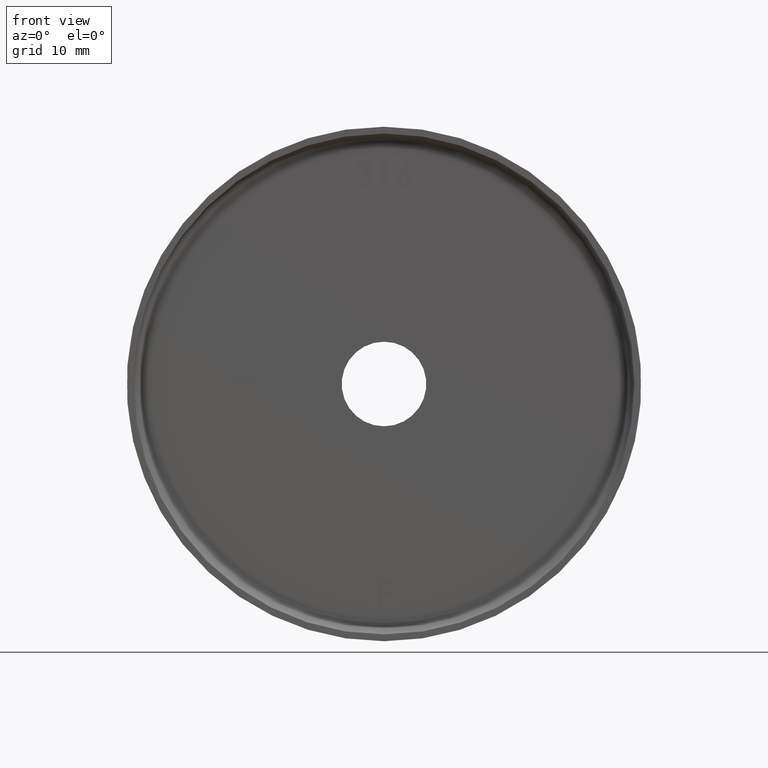
[diagram: clean part render]
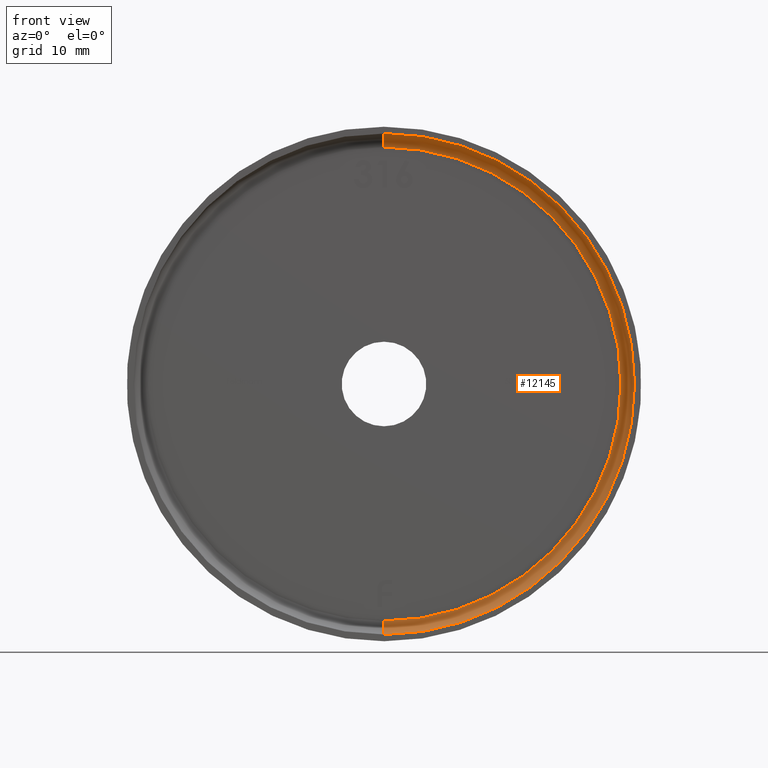
[diagram: same view with one face highlighted and labeled with its STEP entity id]
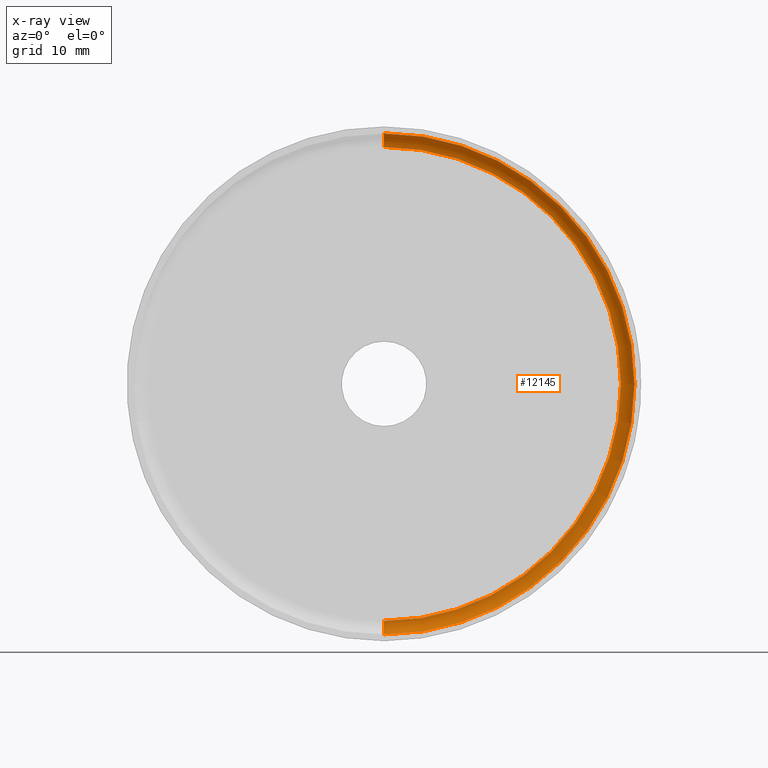
[diagram: x-ray of the same camera — body ghosted, the highlighted face saturated]
A machine part, front view. The second image highlights one B-rep face of the part: STEP entity #12145.
The next image is the same camera in x-ray: the body ghosted, the highlighted face saturated — about 0% of this face is hidden behind the body in this view.
In plain terms, the highlighted toroidal blend (fillet) surface has major radius 35 mm and minor (blend) radius 2 mm.
Its self-contained STEP definition (entity closure, byte-faithful):
#134 = DIRECTION ( 'NONE',  ( 0.000000000000000000, 0.000000000000000000, 1.000000000000000000 ) ) ;
#154 = EDGE_CURVE ( 'NONE', #14000, #12347, #12816, .T. ) ;
#434 = CARTESIAN_POINT ( 'NONE',  ( 0.000000000000000000, 11.00000000000000178, 0.000000000000000000 ) ) ;
#648 = AXIS2_PLACEMENT_3D ( 'NONE', #5395, #3216, #2152 ) ;
#1091 = DIRECTION ( 'NONE',  ( -1.000000000000000000, 0.000000000000000000, 0.000000000000000000 ) ) ;
#1119 = DIRECTION ( 'NONE',  ( 0.000000000000000000, 0.000000000000000000, -1.000000000000000000 ) ) ;
#1227 = EDGE_CURVE ( 'NONE', #12177, #14000, #10354, .T. ) ;
#1272 = CARTESIAN_POINT ( 'NONE',  ( 4.408728476930472433E-15, 11.00000000000000178, 35.00000000000000000 ) ) ;
#1531 = DIRECTION ( 'NONE',  ( -0.000000000000000000, -1.000000000000000000, -0.000000000000000000 ) ) ;
#2152 = DIRECTION ( 'NONE',  ( -1.224646799147353454E-16, 0.000000000000000000, -1.000000000000000000 ) ) ;
#2481 = TOROIDAL_SURFACE ( 'NONE', #11917, 35.00000000000000000, 2.000000000000000000 ) ;
#2522 = CARTESIAN_POINT ( 'NONE',  ( 0.000000000000000000, 9.000000000000001776, 0.000000000000000000 ) ) ;
#2990 = EDGE_CURVE ( 'NONE', #3836, #12347, #11468, .T. ) ;
#3030 = CARTESIAN_POINT ( 'NONE',  ( 4.531193156845207581E-15, 9.000000000000001776, 37.00000000000000711 ) ) ;
#3216 = DIRECTION ( 'NONE',  ( 1.000000000000000000, 0.000000000000000000, -1.224646799147353207E-16 ) ) ;
#3506 = EDGE_CURVE ( 'NONE', #12177, #3836, #10930, .T. ) ;
#3722 = ORIENTED_EDGE ( 'NONE', *, *, #2990, .T. ) ;
#3836 = VERTEX_POINT ( 'NONE', #10152 ) ;
#4515 = CARTESIAN_POINT ( 'NONE',  ( 0.000000000000000000, 9.000000000000001776, 0.000000000000000000 ) ) ;
#5237 = FACE_OUTER_BOUND ( 'NONE', #10174, .T. ) ;
#5395 = CARTESIAN_POINT ( 'NONE',  ( 4.286263797015736496E-15, 9.000000000000001776, 35.00000000000000000 ) ) ;
#5703 = DIRECTION ( 'NONE',  ( 0.000000000000000000, 0.000000000000000000, -1.000000000000000000 ) ) ;
#5805 = DIRECTION ( 'NONE',  ( -0.000000000000000000, -1.000000000000000000, -0.000000000000000000 ) ) ;
#6159 = ORIENTED_EDGE ( 'NONE', *, *, #3506, .T. ) ;
#6394 = AXIS2_PLACEMENT_3D ( 'NONE', #6753, #1091, #134 ) ;
#6753 = CARTESIAN_POINT ( 'NONE',  ( 0.000000000000000000, 9.000000000000001776, -35.00000000000000000 ) ) ;
#6779 = DIRECTION ( 'NONE',  ( -0.000000000000000000, -1.000000000000000000, -0.000000000000000000 ) ) ;
#8184 = AXIS2_PLACEMENT_3D ( 'NONE', #434, #1531, #9307 ) ;
#9307 = DIRECTION ( 'NONE',  ( 0.000000000000000000, 0.000000000000000000, -1.000000000000000000 ) ) ;
#10152 = CARTESIAN_POINT ( 'NONE',  ( 0.000000000000000000, 9.000000000000001776, -37.00000000000000711 ) ) ;
#10174 = EDGE_LOOP ( 'NONE', ( #13131, #10333, #6159, #3722 ) ) ;
#10333 = ORIENTED_EDGE ( 'NONE', *, *, #1227, .F. ) ;
#10354 = CIRCLE ( 'NONE', #8184, 35.00000000000000000 ) ;
#10930 = CIRCLE ( 'NONE', #6394, 2.000000000000001776 ) ;
#11468 = CIRCLE ( 'NONE', #14322, 37.00000000000000711 ) ;
#11917 = AXIS2_PLACEMENT_3D ( 'NONE', #2522, #5805, #5703 ) ;
#12145 = ADVANCED_FACE ( 'NONE', ( #5237 ), #2481, .F. ) ;
#12177 = VERTEX_POINT ( 'NONE', #12458 ) ;
#12347 = VERTEX_POINT ( 'NONE', #3030 ) ;
#12458 = CARTESIAN_POINT ( 'NONE',  ( 0.000000000000000000, 11.00000000000000178, -35.00000000000000000 ) ) ;
#12816 = CIRCLE ( 'NONE', #648, 2.000000000000001776 ) ;
#13131 = ORIENTED_EDGE ( 'NONE', *, *, #154, .F. ) ;
#14000 = VERTEX_POINT ( 'NONE', #1272 ) ;
#14322 = AXIS2_PLACEMENT_3D ( 'NONE', #4515, #6779, #1119 ) ;